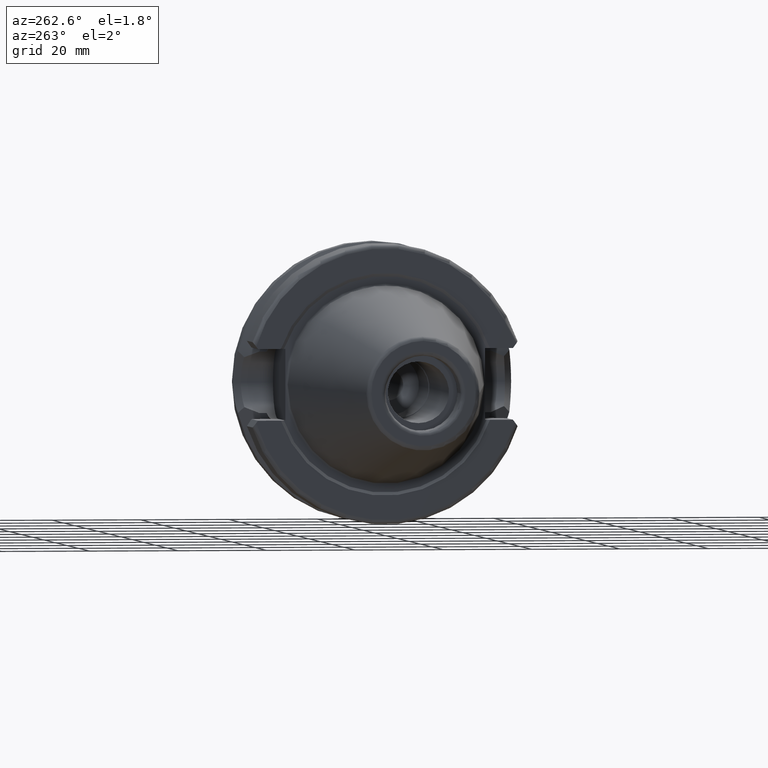
[diagram: clean part render]
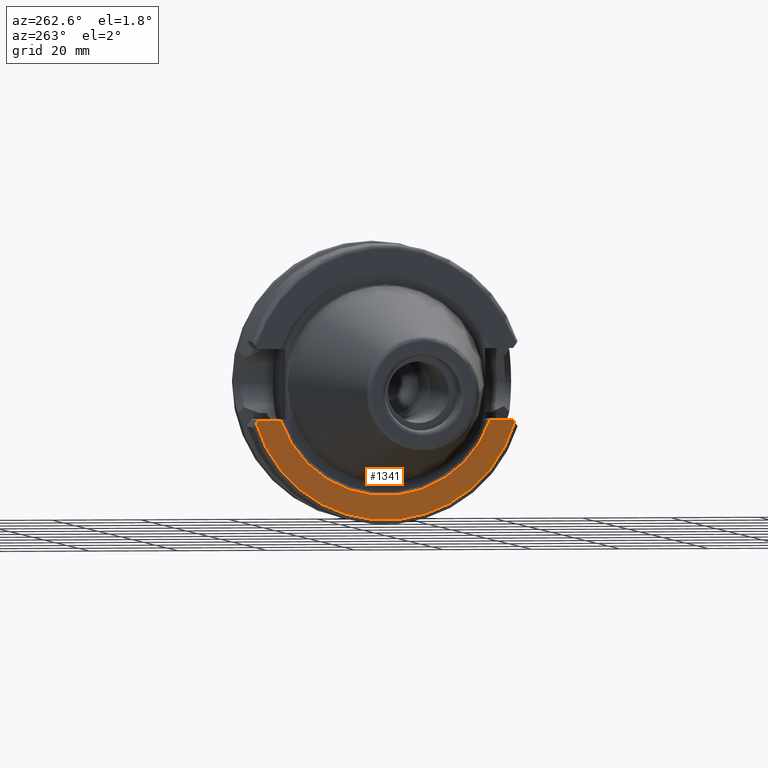
[diagram: same view with one face highlighted and labeled with its STEP entity id]
A machine part, auxiliary view. The second image highlights one B-rep face of the part: STEP entity #1341.
In plain terms, the highlighted planar face has unit normal (-1, 0, 0).
Its self-contained STEP definition (entity closure, byte-faithful):
#61=PLANE('',#1496);
#138=FACE_OUTER_BOUND('',#216,.T.);
#216=EDGE_LOOP('',(#1025,#1026,#1027,#1028,#1029,#1030));
#277=LINE('',#2326,#343);
#279=LINE('',#2348,#345);
#280=LINE('',#2352,#346);
#281=LINE('',#2353,#347);
#343=VECTOR('',#1778,10.);
#345=VECTOR('',#1792,10.);
#346=VECTOR('',#1795,10.);
#347=VECTOR('',#1796,10.);
#456=CIRCLE('',#1495,30.5);
#457=CIRCLE('',#1497,25.);
#567=VERTEX_POINT('',#2306);
#571=VERTEX_POINT('',#2324);
#574=VERTEX_POINT('',#2334);
#575=VERTEX_POINT('',#2347);
#576=VERTEX_POINT('',#2349);
#577=VERTEX_POINT('',#2351);
#738=EDGE_CURVE('',#571,#567,#277,.T.);
#742=EDGE_CURVE('',#567,#574,#456,.T.);
#744=EDGE_CURVE('',#571,#575,#279,.T.);
#745=EDGE_CURVE('',#575,#576,#457,.T.);
#746=EDGE_CURVE('',#576,#577,#280,.T.);
#747=EDGE_CURVE('',#574,#577,#281,.T.);
#1025=ORIENTED_EDGE('',*,*,#738,.F.);
#1026=ORIENTED_EDGE('',*,*,#744,.T.);
#1027=ORIENTED_EDGE('',*,*,#745,.T.);
#1028=ORIENTED_EDGE('',*,*,#746,.T.);
#1029=ORIENTED_EDGE('',*,*,#747,.F.);
#1030=ORIENTED_EDGE('',*,*,#742,.F.);
#1341=ADVANCED_FACE('',(#138),#61,.T.);
#1495=AXIS2_PLACEMENT_3D('',#2335,#1788,#1789);
#1496=AXIS2_PLACEMENT_3D('',#2346,#1790,#1791);
#1497=AXIS2_PLACEMENT_3D('',#2350,#1793,#1794);
#1778=DIRECTION('',(0.,-0.599988902555658,-0.800008322962991));
#1788=DIRECTION('center_axis',(1.,0.,0.));
#1789=DIRECTION('ref_axis',(0.,0.,-1.));
#1790=DIRECTION('center_axis',(-1.,0.,0.));
#1791=DIRECTION('ref_axis',(0.,0.,1.));
#1792=DIRECTION('',(0.,1.,0.));
#1793=DIRECTION('center_axis',(1.,0.,0.));
#1794=DIRECTION('ref_axis',(0.,0.,-1.));
#1795=DIRECTION('',(0.,1.,0.));
#1796=DIRECTION('',(0.,-0.599988902555658,0.800008322962991));
#2306=CARTESIAN_POINT('',(0.999999999999992,-29.2635810473993,-8.59609354778619));
#2324=CARTESIAN_POINT('',(0.999999999999993,-28.8540227227866,-8.05));
#2326=CARTESIAN_POINT('',(0.999999999999993,-16.5266988165472,8.38690688751911));
#2334=CARTESIAN_POINT('',(0.999999999999992,29.2635810473993,-8.59609354778619));
#2335=CARTESIAN_POINT('Origin',(0.999999999999992,0.,0.));
#2346=CARTESIAN_POINT('Origin',(0.999999999999993,30.5,0.));
#2347=CARTESIAN_POINT('',(1.,-23.6684917136686,-8.05));
#2348=CARTESIAN_POINT('',(0.999999999999993,3.95,-8.05));
#2349=CARTESIAN_POINT('',(1.,23.6684917136686,-8.05));
#2350=CARTESIAN_POINT('Origin',(1.,0.,0.));
#2351=CARTESIAN_POINT('',(0.999999999999993,28.8540227227866,-8.05));
#2352=CARTESIAN_POINT('',(0.999999999999993,26.55,-8.05));
#2353=CARTESIAN_POINT('',(0.999999999999993,27.5062926538405,-6.25297464224459));